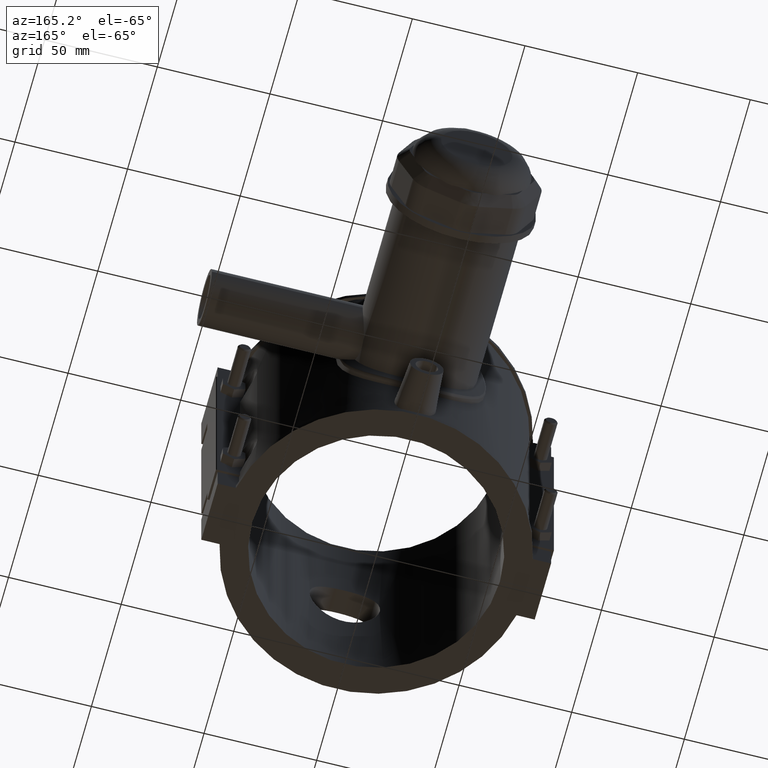
[diagram: clean part render]
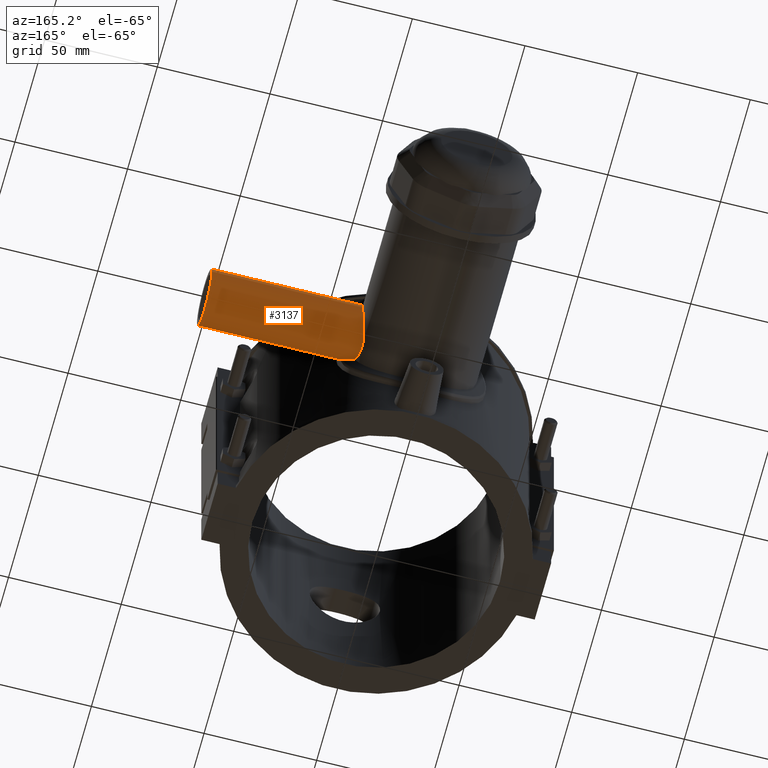
[diagram: same view with one face highlighted and labeled with its STEP entity id]
A machine part, auxiliary view. The second image highlights one B-rep face of the part: STEP entity #3137.
In plain terms, the highlighted cylindrical surface (bore or boss wall) has radius 12.5 mm, axis along (1, 0, 0).
Its self-contained STEP definition (entity closure, byte-faithful):
#731=CIRCLE('',#3329,12.5);
#843=FACE_BOUND('',#1086,.T.);
#895=FACE_OUTER_BOUND('',#1085,.T.);
#1085=EDGE_LOOP('',(#2154,#2155,#2156,#2157,#2158,#2159,#2160));
#1086=EDGE_LOOP('',(#2161));
#1323=B_SPLINE_CURVE_WITH_KNOTS('',3,(#4606,#4607,#4608,#4609,#4610,#4611),
 .UNSPECIFIED.,.F.,.F.,(4,2,4),(3.58212765097517,3.84092007126623,4.2018629553767),
 .UNSPECIFIED.);
#1324=B_SPLINE_CURVE_WITH_KNOTS('',3,(#4613,#4614,#4615,#4616,#4617,#4618,
#4619,#4620),.UNSPECIFIED.,.F.,.F.,(4,2,2,4),(-0.189389820359375,-0.0846740364441688,
-0.0136972739545401,0.),.UNSPECIFIED.);
#1325=B_SPLINE_CURVE_WITH_KNOTS('',3,(#4622,#4623,#4624,#4625,#4626,#4627,
#4628,#4629,#4630,#4631),.UNSPECIFIED.,.F.,.F.,(4,2,2,2,4),(5.16573669794148,
5.23678943168737,5.71265349893912,6.18851756619086,6.25957029926738),
 .UNSPECIFIED.);
#1326=B_SPLINE_CURVE_WITH_KNOTS('',3,(#4633,#4634,#4635,#4636,#4637,#4638,
#4639,#4640),.UNSPECIFIED.,.F.,.F.,(4,2,2,4),(-0.269185449176134,-0.190424436222936,
-0.1038770166509,0.),.UNSPECIFIED.);
#1327=B_SPLINE_CURVE_WITH_KNOTS('',3,(#4642,#4643,#4644,#4645,#4646,#4647),
 .UNSPECIFIED.,.F.,.F.,(4,2,4),(1.12879111958315,1.48973400369362,1.74852642303979),
 .UNSPECIFIED.);
#1328=B_SPLINE_CURVE_WITH_KNOTS('',3,(#4649,#4650,#4651,#4652,#4653,#4654,
#4655,#4656),.UNSPECIFIED.,.F.,.F.,(4,2,2,4),(0.,0.239332875766176,0.478665751532351,
0.787547585309707),.UNSPECIFIED.);
#1329=B_SPLINE_CURVE_WITH_KNOTS('',3,(#4657,#4658,#4659,#4660,#4661,#4662,
#4663,#4664,#4665,#4666,#4667,#4668,#4669,#4670,#4671,#4672,#4673,#4674,
#4675,#4676,#4677,#4678,#4679,#4680,#4681,#4682,#4683,#4684,#4685,#4686,
#4687,#4688),.UNSPECIFIED.,.F.,.F.,(4,2,2,2,2,2,2,2,2,2,2,2,2,2,2,4),(3.03866845376901,
3.34755028754637,3.58688316331254,3.82621603907872,4.06554891484489,4.30488179061107,
4.78354754214342,5.26143580038075,5.50037992949941,5.73932405861807,5.97826818773674,
6.2172123168554,6.69510057509273,7.17376632662508,7.41309920239126,7.65243207815743),
 .UNSPECIFIED.);
#1385=VERTEX_POINT('',#4604);
#1386=VERTEX_POINT('',#4605);
#1387=VERTEX_POINT('',#4612);
#1388=VERTEX_POINT('',#4621);
#1389=VERTEX_POINT('',#4632);
#1390=VERTEX_POINT('',#4641);
#1391=VERTEX_POINT('',#4648);
#1392=VERTEX_POINT('',#4689);
#1694=EDGE_CURVE('',#1385,#1386,#1323,.T.);
#1695=EDGE_CURVE('',#1387,#1385,#1324,.T.);
#1696=EDGE_CURVE('',#1388,#1387,#1325,.T.);
#1697=EDGE_CURVE('',#1389,#1388,#1326,.T.);
#1698=EDGE_CURVE('',#1390,#1389,#1327,.T.);
#1699=EDGE_CURVE('',#1391,#1390,#1328,.T.);
#1700=EDGE_CURVE('',#1386,#1391,#1329,.T.);
#1701=EDGE_CURVE('',#1392,#1392,#731,.T.);
#2154=ORIENTED_EDGE('',*,*,#1694,.F.);
#2155=ORIENTED_EDGE('',*,*,#1695,.F.);
#2156=ORIENTED_EDGE('',*,*,#1696,.F.);
#2157=ORIENTED_EDGE('',*,*,#1697,.F.);
#2158=ORIENTED_EDGE('',*,*,#1698,.F.);
#2159=ORIENTED_EDGE('',*,*,#1699,.F.);
#2160=ORIENTED_EDGE('',*,*,#1700,.F.);
#2161=ORIENTED_EDGE('',*,*,#1701,.F.);
#3089=CYLINDRICAL_SURFACE('',#3328,12.5);
#3137=ADVANCED_FACE('',(#895,#843),#3089,.T.);
#3328=AXIS2_PLACEMENT_3D('',#4603,#3627,#3628);
#3329=AXIS2_PLACEMENT_3D('',#4690,#3629,#3630);
#3627=DIRECTION('center_axis',(1.,0.,0.));
#3628=DIRECTION('ref_axis',(0.,1.,0.));
#3629=DIRECTION('center_axis',(1.,0.,0.));
#3630=DIRECTION('ref_axis',(0.,0.,-1.));
#4603=CARTESIAN_POINT('Origin',(47.5,71.,0.));
#4604=CARTESIAN_POINT('',(31.5188204360374,60.9755160566106,7.46724324508663));
#4605=CARTESIAN_POINT('',(26.2264485236546,63.4320344765647,9.94866311803225));
#4606=CARTESIAN_POINT('Ctrl Pts',(31.5188204353698,60.9755160565527,7.46724324416768));
#4607=CARTESIAN_POINT('Ctrl Pts',(30.8650327347673,61.3134650969353,7.92092670113345));
#4608=CARTESIAN_POINT('Ctrl Pts',(30.1703873509176,61.6591128290836,8.32138514846382));
#4609=CARTESIAN_POINT('Ctrl Pts',(28.4278581528542,62.4865480733675,9.17893356501243));
#4610=CARTESIAN_POINT('Ctrl Pts',(27.3490759122359,62.9678757961625,9.59557679386871));
#4611=CARTESIAN_POINT('Ctrl Pts',(26.2264485236546,63.4320344765647,9.94866311803225));
#4612=CARTESIAN_POINT('',(32.5410487053544,59.7674646297352,5.48453727818044));
#4613=CARTESIAN_POINT('Ctrl Pts',(32.5410487053544,59.7674646297352,5.48453727818047));
#4614=CARTESIAN_POINT('Ctrl Pts',(32.4473942444458,60.0387848858878,6.04021120641264));
#4615=CARTESIAN_POINT('Ctrl Pts',(32.2881752420611,60.3076384093926,6.48811213588254));
#4616=CARTESIAN_POINT('Ctrl Pts',(31.9426539678346,60.6883661838432,7.07101956931212));
#4617=CARTESIAN_POINT('Ctrl Pts',(31.7844282576315,60.819865194735,7.25557414702139));
#4618=CARTESIAN_POINT('Ctrl Pts',(31.5866371589472,60.9389615053232,7.41798933975046));
#4619=CARTESIAN_POINT('Ctrl Pts',(31.5533467997862,60.9576690525295,7.44328433464118));
#4620=CARTESIAN_POINT('Ctrl Pts',(31.5188204365333,60.9755160559513,7.46724324336028));
#4621=CARTESIAN_POINT('',(32.5410487040973,59.767464631587,-5.48453728504733));
#4622=CARTESIAN_POINT('Ctrl Pts',(32.5410487042924,59.7674646328121,-5.484537284482));
#4623=CARTESIAN_POINT('Ctrl Pts',(32.5786253198702,59.6586038602716,-5.26158639286888));
#4624=CARTESIAN_POINT('Ctrl Pts',(32.6144560531374,59.5561919245929,-5.03498915052968));
#4625=CARTESIAN_POINT('Ctrl Pts',(32.8745831629752,58.8202195053276,-3.26766099975143));
#4626=CARTESIAN_POINT('Ctrl Pts',(33.,58.5,-1.58621355750583));
#4627=CARTESIAN_POINT('Ctrl Pts',(33.,58.5,1.58621355750582));
#4628=CARTESIAN_POINT('Ctrl Pts',(32.8745831629752,58.8202195053276,3.26766099975143));
#4629=CARTESIAN_POINT('Ctrl Pts',(32.6144560534558,59.5561919236921,5.03498914836664));
#4630=CARTESIAN_POINT('Ctrl Pts',(32.5786253205454,59.6586038583418,5.26158638859931));
#4631=CARTESIAN_POINT('Ctrl Pts',(32.5410487053544,59.7674646297352,5.48453727818044));
#4632=CARTESIAN_POINT('',(31.5188204329857,60.9755160606682,-7.46724325571075));
#4633=CARTESIAN_POINT('Ctrl Pts',(31.5188204365333,60.9755160559513,-7.46724324336028));
#4634=CARTESIAN_POINT('Ctrl Pts',(31.6688050473111,60.8979875933629,-7.36316429439674));
#4635=CARTESIAN_POINT('Ctrl Pts',(31.8152737908505,60.7937653179584,-7.22025438419781));
#4636=CARTESIAN_POINT('Ctrl Pts',(32.0974359563368,60.5314233657211,-6.83508833202668));
#4637=CARTESIAN_POINT('Ctrl Pts',(32.2134690692578,60.386055536664,-6.60820875764365));
#4638=CARTESIAN_POINT('Ctrl Pts',(32.4132289165417,60.0803681026902,-6.09250246763752));
#4639=CARTESIAN_POINT('Ctrl Pts',(32.4891985786837,59.9176762642196,-5.79217626608259));
#4640=CARTESIAN_POINT('Ctrl Pts',(32.5410487053544,59.7674646297352,-5.48453727818046));
#4641=CARTESIAN_POINT('',(26.2264485236546,63.4320344765647,-9.94866311803225));
#4642=CARTESIAN_POINT('Ctrl Pts',(26.2264485236546,63.4320344765647,-9.94866311803225));
#4643=CARTESIAN_POINT('Ctrl Pts',(27.3490759122359,62.9678757961625,-9.59557679386871));
#4644=CARTESIAN_POINT('Ctrl Pts',(28.4278581528542,62.4865480733675,-9.17893356501243));
#4645=CARTESIAN_POINT('Ctrl Pts',(30.1703873482608,61.6591128303452,-8.3213851497713));
#4646=CARTESIAN_POINT('Ctrl Pts',(30.8650327296942,61.3134650994603,-7.92092670405384));
#4647=CARTESIAN_POINT('Ctrl Pts',(31.5188204282094,60.975516060254,-7.46724324913645));
#4648=CARTESIAN_POINT('',(25.1108044474883,71.,-12.5));
#4649=CARTESIAN_POINT('Ctrl Pts',(25.1108044474883,71.,-12.5));
#4650=CARTESIAN_POINT('Ctrl Pts',(25.1108044474883,70.2022237474461,-12.5));
#4651=CARTESIAN_POINT('Ctrl Pts',(25.1499155994432,69.3815624820474,-12.4224109784003));
#4652=CARTESIAN_POINT('Ctrl Pts',(25.3064267197304,67.7571125720534,-12.1003849423421));
#4653=CARTESIAN_POINT('Ctrl Pts',(25.4236078857494,66.953279731833,-11.8560645782118));
#4654=CARTESIAN_POINT('Ctrl Pts',(25.7547811997625,65.1945356730914,-11.122031981103));
#4655=CARTESIAN_POINT('Ctrl Pts',(25.9870410331853,64.2616905057218,-10.5797839179305));
#4656=CARTESIAN_POINT('Ctrl Pts',(26.2264485236546,63.4320344765647,-9.94866311803223));
#4657=CARTESIAN_POINT('Ctrl Pts',(26.2264485236546,63.4320344765647,9.94866311803225));
#4658=CARTESIAN_POINT('Ctrl Pts',(25.9870410331853,64.2616905057218,10.5797839179305));
#4659=CARTESIAN_POINT('Ctrl Pts',(25.7547811997625,65.1945356730914,11.122031981103));
#4660=CARTESIAN_POINT('Ctrl Pts',(25.4236078857494,66.953279731833,11.8560645782118));
#4661=CARTESIAN_POINT('Ctrl Pts',(25.3064267197304,67.7571125720534,12.1003849423421));
#4662=CARTESIAN_POINT('Ctrl Pts',(25.1499155994432,69.3815624820474,12.4224109784003));
#4663=CARTESIAN_POINT('Ctrl Pts',(25.1108044474883,70.2022237474461,12.5));
#4664=CARTESIAN_POINT('Ctrl Pts',(25.1108044474883,71.7977762525539,12.5));
#4665=CARTESIAN_POINT('Ctrl Pts',(25.1499155994432,72.6184375179526,12.4224109784003));
#4666=CARTESIAN_POINT('Ctrl Pts',(25.3064267197304,74.2428874279466,12.1003849423421));
#4667=CARTESIAN_POINT('Ctrl Pts',(25.4236078857494,75.046720268167,11.8560645782118));
#4668=CARTESIAN_POINT('Ctrl Pts',(25.8573466758984,77.3501532077854,10.8946996459295));
#4669=CARTESIAN_POINT('Ctrl Pts',(26.2563141066055,78.7404737296315,9.93719580003215));
#4670=CARTESIAN_POINT('Ctrl Pts',(26.9850882444841,80.9354117401999,7.74225778946379));
#4671=CARTESIAN_POINT('Ctrl Pts',(27.3659910158729,81.8942507423159,6.35129215834523));
#4672=CARTESIAN_POINT('Ctrl Pts',(27.7676391224687,82.8563998842155,4.04588518065417));
#4673=CARTESIAN_POINT('Ctrl Pts',(27.8740157162065,83.1007918402846,3.2413943047849));
#4674=CARTESIAN_POINT('Ctrl Pts',(28.0152396270572,83.4226431316871,1.61670585633488));
#4675=CARTESIAN_POINT('Ctrl Pts',(28.05,83.5,0.796480430395548));
#4676=CARTESIAN_POINT('Ctrl Pts',(28.05,83.5,-0.796480430395541));
#4677=CARTESIAN_POINT('Ctrl Pts',(28.0152396270572,83.4226431316871,-1.61670585633487));
#4678=CARTESIAN_POINT('Ctrl Pts',(27.8740157162065,83.1007918402846,-3.24139430478489));
#4679=CARTESIAN_POINT('Ctrl Pts',(27.7676391224687,82.8563998842155,-4.04588518065417));
#4680=CARTESIAN_POINT('Ctrl Pts',(27.3659910158729,81.8942507423159,-6.35129215834523));
#4681=CARTESIAN_POINT('Ctrl Pts',(26.9850882444841,80.9354117401999,-7.74225778946379));
#4682=CARTESIAN_POINT('Ctrl Pts',(26.2563141066055,78.7404737296315,-9.93719580003215));
#4683=CARTESIAN_POINT('Ctrl Pts',(25.8573466758984,77.3501532077854,-10.8946996459295));
#4684=CARTESIAN_POINT('Ctrl Pts',(25.4236078857494,75.046720268167,-11.8560645782118));
#4685=CARTESIAN_POINT('Ctrl Pts',(25.3064267197304,74.2428874279466,-12.1003849423421));
#4686=CARTESIAN_POINT('Ctrl Pts',(25.1499155994432,72.6184375179526,-12.4224109784003));
#4687=CARTESIAN_POINT('Ctrl Pts',(25.1108044474883,71.7977762525539,-12.5));
#4688=CARTESIAN_POINT('Ctrl Pts',(25.1108044474883,71.,-12.5));
#4689=CARTESIAN_POINT('',(95.,83.5,0.));
#4690=CARTESIAN_POINT('Origin',(95.,71.,0.));